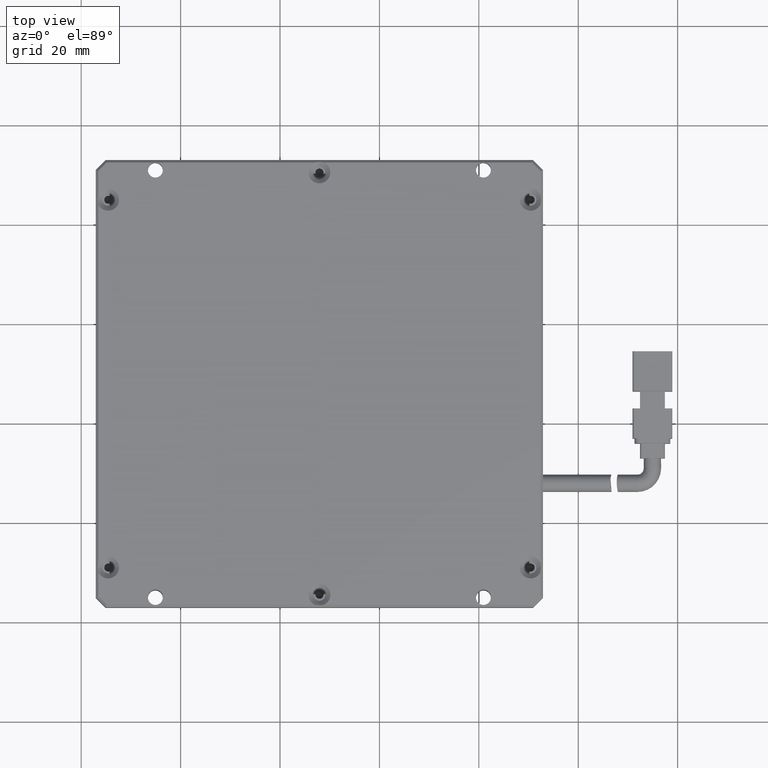
[diagram: clean part render]
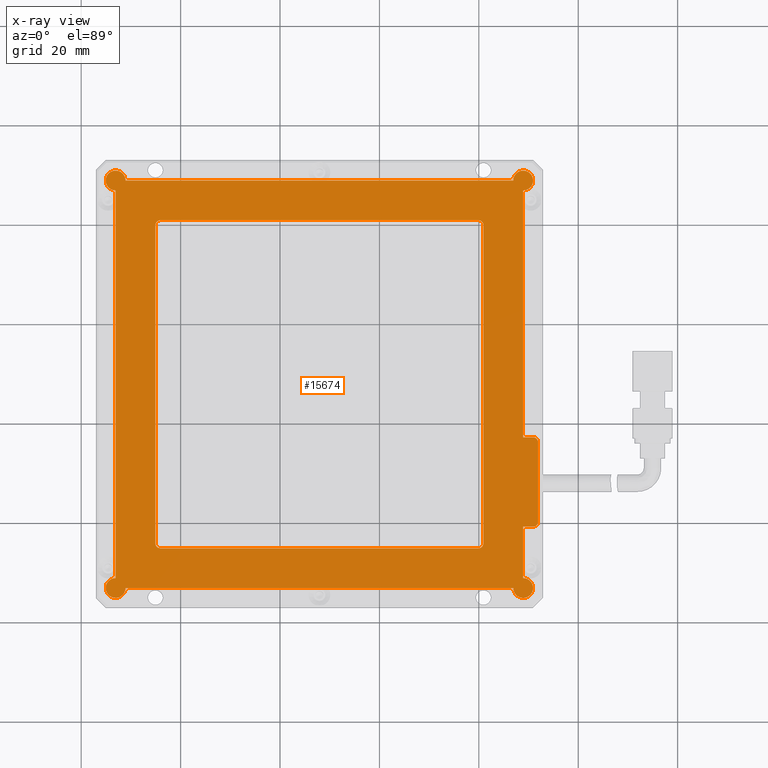
[diagram: x-ray — body ghosted, one internal face saturated and labeled with its STEP entity id]
A machine part, top view, then the same camera in x-ray: the body is ghosted and one INTERNAL B-rep face — a face not visible from any outside direction — is saturated and labeled: STEP entity #15674.
In plain terms, the highlighted planar face has unit normal (-0, 0, 1).
Its self-contained STEP definition (entity closure, byte-faithful):
#203 = EDGE_CURVE ( 'NONE', #16729, #277, #480, .T. ) ;
#277 = VERTEX_POINT ( 'NONE', #5808 ) ;
#480 = CIRCLE ( 'NONE', #10522, 2.000000000000001800 ) ;
#699 = LINE ( 'NONE', #14912, #8161 ) ;
#782 = DIRECTION ( 'NONE',  ( 1.000000000000000000, 0.0000000000000000000, 0.0000000000000000000 ) ) ;
#783 = CARTESIAN_POINT ( 'NONE',  ( 8.920740740740770400, -13.06000000000001600, -2.000000000000000000 ) ) ;
#830 = CIRCLE ( 'NONE', #3442, 2.000000000000001800 ) ;
#835 = CARTESIAN_POINT ( 'NONE',  ( 8.920740740740770400, 66.93999999999999800, -2.000000000000000000 ) ) ;
#846 = DIRECTION ( 'NONE',  ( -0.0000000000000000000, -0.0000000000000000000, 1.000000000000000000 ) ) ;
#947 = EDGE_CURVE ( 'NONE', #4215, #11869, #8292, .T. ) ;
#1188 = DIRECTION ( 'NONE',  ( 0.0000000000000000000, 1.000000000000000000, -0.0000000000000000000 ) ) ;
#1235 = CARTESIAN_POINT ( 'NONE',  ( 8.920740740740770400, -11.06000000000001500, -2.000000000000000000 ) ) ;
#1364 = CIRCLE ( 'NONE', #7780, 1.000000000000000900 ) ;
#1443 = DIRECTION ( 'NONE',  ( -0.0000000000000000000, -0.0000000000000000000, 1.000000000000000000 ) ) ;
#1472 = VERTEX_POINT ( 'NONE', #6401 ) ;
#1513 = DIRECTION ( 'NONE',  ( -0.0000000000000000000, 0.0000000000000000000, 1.000000000000000000 ) ) ;
#1642 = EDGE_CURVE ( 'NONE', #8395, #12566, #12587, .T. ) ;
#1661 = CARTESIAN_POINT ( 'NONE',  ( -73.07925925925924600, -11.06000000000001600, -2.000000000000000000 ) ) ;
#1773 = EDGE_CURVE ( 'NONE', #6897, #4829, #13437, .T. ) ;
#1838 = DIRECTION ( 'NONE',  ( -0.0000000000000000000, -0.0000000000000000000, 1.000000000000000000 ) ) ;
#1852 = CARTESIAN_POINT ( 'NONE',  ( -73.07925925925924600, 66.93999999999999800, -2.000000000000000000 ) ) ;
#1886 = CARTESIAN_POINT ( 'NONE',  ( 0.9207407407407497400, 59.94000000000000500, -2.000000000000000000 ) ) ;
#1971 = ORIENTED_EDGE ( 'NONE', *, *, #13765, .T. ) ;
#1983 = EDGE_CURVE ( 'NONE', #12288, #10540, #11546, .T. ) ;
#2100 = CARTESIAN_POINT ( 'NONE',  ( 8.920740740740756200, 68.93999999999999800, -2.000000000000000000 ) ) ;
#2331 = DIRECTION ( 'NONE',  ( -0.0000000000000000000, -0.0000000000000000000, -1.000000000000000000 ) ) ;
#2409 = CARTESIAN_POINT ( 'NONE',  ( 8.920740740740770400, -0.7385637334317435300, -2.000000000000000000 ) ) ;
#2434 = CARTESIAN_POINT ( 'NONE',  ( 11.92074074074077400, -13.06000000000001600, -2.000000000000000000 ) ) ;
#2445 = EDGE_CURVE ( 'NONE', #8672, #13931, #11530, .T. ) ;
#2753 = CIRCLE ( 'NONE', #14839, 2.000000000000001800 ) ;
#2861 = ORIENTED_EDGE ( 'NONE', *, *, #11790, .T. ) ;
#3070 = AXIS2_PLACEMENT_3D ( 'NONE', #9900, #1513, #11325 ) ;
#3110 = VERTEX_POINT ( 'NONE', #8016 ) ;
#3150 = CARTESIAN_POINT ( 'NONE',  ( 8.920740740740770400, -13.06000000000001600, -2.000000000000000000 ) ) ;
#3442 = AXIS2_PLACEMENT_3D ( 'NONE', #14205, #846, #10660 ) ;
#3451 = CARTESIAN_POINT ( 'NONE',  ( 10.92074074074078600, -0.7385637334317435300, -1.999999999999999100 ) ) ;
#3536 = CARTESIAN_POINT ( 'NONE',  ( 8.920740740740770400, -13.06000000000001600, -2.000000000000000000 ) ) ;
#4215 = VERTEX_POINT ( 'NONE', #1235 ) ;
#4376 = CARTESIAN_POINT ( 'NONE',  ( 6.920740740740768600, -13.06000000000001600, -2.000000000000000000 ) ) ;
#4418 = ORIENTED_EDGE ( 'NONE', *, *, #7686, .T. ) ;
#4558 = CARTESIAN_POINT ( 'NONE',  ( -71.07925925925924600, 68.93999999999999800, -2.000000000000000000 ) ) ;
#4829 = VERTEX_POINT ( 'NONE', #1852 ) ;
#4961 = ORIENTED_EDGE ( 'NONE', *, *, #8245, .F. ) ;
#4993 = DIRECTION ( 'NONE',  ( 1.000000000000000000, 0.0000000000000000000, 0.0000000000000000000 ) ) ;
#5012 = LINE ( 'NONE', #17932, #12373 ) ;
#5073 = CARTESIAN_POINT ( 'NONE',  ( -0.07925925925922339100, -4.059999999999994300, -2.000000000000000000 ) ) ;
#5293 = ORIENTED_EDGE ( 'NONE', *, *, #13550, .T. ) ;
#5327 = AXIS2_PLACEMENT_3D ( 'NONE', #6534, #16156, #7919 ) ;
#5567 = CIRCLE ( 'NONE', #13862, 1.000000000000000900 ) ;
#5791 = EDGE_CURVE ( 'NONE', #16680, #10540, #14229, .T. ) ;
#5793 = ORIENTED_EDGE ( 'NONE', *, *, #7312, .T. ) ;
#5808 = CARTESIAN_POINT ( 'NONE',  ( 6.920740740740755300, 68.93999999999999800, -2.000000000000000000 ) ) ;
#5879 = DIRECTION ( 'NONE',  ( 0.0000000000000000000, 1.000000000000000000, -0.0000000000000000000 ) ) ;
#5941 = DIRECTION ( 'NONE',  ( -0.0000000000000000000, 0.0000000000000000000, -1.000000000000000000 ) ) ;
#6017 = VERTEX_POINT ( 'NONE', #16732 ) ;
#6220 = LINE ( 'NONE', #7934, #13135 ) ;
#6401 = CARTESIAN_POINT ( 'NONE',  ( 10.92074074074077200, -13.06000000000001600, -2.000000000000000000 ) ) ;
#6416 = ORIENTED_EDGE ( 'NONE', *, *, #11770, .T. ) ;
#6490 = DIRECTION ( 'NONE',  ( 1.000000000000000000, 0.0000000000000000000, 0.0000000000000000000 ) ) ;
#6521 = CARTESIAN_POINT ( 'NONE',  ( -71.07925925925924600, -13.06000000000001600, -2.000000000000000000 ) ) ;
#6533 = VECTOR ( 'NONE', #12614, 1000.000000000000000 ) ;
#6534 = CARTESIAN_POINT ( 'NONE',  ( 10.92074074074078600, 16.26143626656825700, -1.999999999999999100 ) ) ;
#6609 = EDGE_LOOP ( 'NONE', ( #13411, #13968, #14447, #14907, #15366, #1971, #2861, #4418, #5293, #6416, #7056, #12913, #13989, #15039, #16565, #17484 ) ) ;
#6669 = DIRECTION ( 'NONE',  ( -1.000000000000000000, -0.0000000000000000000, -0.0000000000000000000 ) ) ;
#6886 = ORIENTED_EDGE ( 'NONE', *, *, #1642, .F. ) ;
#6897 = VERTEX_POINT ( 'NONE', #4558 ) ;
#7056 = ORIENTED_EDGE ( 'NONE', *, *, #203, .T. ) ;
#7248 = CARTESIAN_POINT ( 'NONE',  ( 10.92074074074078600, 0.2614362665682608000, -1.999999999999999100 ) ) ;
#7312 = EDGE_CURVE ( 'NONE', #11448, #12566, #1364, .T. ) ;
#7344 = CIRCLE ( 'NONE', #16387, 1.000000000000000900 ) ;
#7494 = ORIENTED_EDGE ( 'NONE', *, *, #13210, .T. ) ;
#7661 = EDGE_CURVE ( 'NONE', #16680, #14309, #6220, .T. ) ;
#7686 = EDGE_CURVE ( 'NONE', #6017, #16736, #699, .T. ) ;
#7690 = DIRECTION ( 'NONE',  ( -0.0000000000000000000, -0.0000000000000000000, 1.000000000000000000 ) ) ;
#7702 = CARTESIAN_POINT ( 'NONE',  ( -65.07925925925923100, -4.059999999999994300, -2.000000000000000000 ) ) ;
#7780 = AXIS2_PLACEMENT_3D ( 'NONE', #8444, #18106, #9800 ) ;
#7919 = DIRECTION ( 'NONE',  ( -1.000000000000000000, 0.0000000000000000000, 0.0000000000000000000 ) ) ;
#7934 = CARTESIAN_POINT ( 'NONE',  ( 0.9207407407407497400, 60.94000000000000500, -2.000000000000000000 ) ) ;
#7996 = ORIENTED_EDGE ( 'NONE', *, *, #7661, .F. ) ;
#8016 = CARTESIAN_POINT ( 'NONE',  ( 11.92074074074077400, 0.2614362665682608000, -1.999999999999999100 ) ) ;
#8161 = VECTOR ( 'NONE', #6669, 1000.000000000000000 ) ;
#8240 = AXIS2_PLACEMENT_3D ( 'NONE', #10298, #11638, #11762 ) ;
#8245 = EDGE_CURVE ( 'NONE', #11448, #12853, #13639, .T. ) ;
#8292 = LINE ( 'NONE', #783, #15627 ) ;
#8333 = AXIS2_PLACEMENT_3D ( 'NONE', #7248, #16924, #8663 ) ;
#8395 = VERTEX_POINT ( 'NONE', #8595 ) ;
#8444 = CARTESIAN_POINT ( 'NONE',  ( -64.07925925925923100, 59.94000000000000500, -2.000000000000000000 ) ) ;
#8451 = AXIS2_PLACEMENT_3D ( 'NONE', #5073, #14743, #6490 ) ;
#8482 = PLANE ( 'NONE',  #3070 ) ;
#8505 = AXIS2_PLACEMENT_3D ( 'NONE', #15928, #7690, #17371 ) ;
#8595 = CARTESIAN_POINT ( 'NONE',  ( -0.07925925925925114700, 60.94000000000000500, -2.000000000000000000 ) ) ;
#8663 = DIRECTION ( 'NONE',  ( -1.000000000000000000, 0.0000000000000000000, 0.0000000000000000000 ) ) ;
#8672 = VERTEX_POINT ( 'NONE', #6521 ) ;
#8811 = ORIENTED_EDGE ( 'NONE', *, *, #5791, .T. ) ;
#8857 = LINE ( 'NONE', #3150, #12498 ) ;
#9036 = EDGE_LOOP ( 'NONE', ( #4961, #5793, #6886, #7494, #7996, #8811, #11918, #12320 ) ) ;
#9322 = EDGE_CURVE ( 'NONE', #15520, #3110, #15330, .T. ) ;
#9574 = DIRECTION ( 'NONE',  ( -0.0000000000000000000, -1.000000000000000000, 0.0000000000000000000 ) ) ;
#9604 = DIRECTION ( 'NONE',  ( -1.000000000000000000, -0.0000000000000000000, -0.0000000000000000000 ) ) ;
#9668 = CARTESIAN_POINT ( 'NONE',  ( -73.07925925925924600, 68.93999999999999800, -2.000000000000000000 ) ) ;
#9674 = LINE ( 'NONE', #15189, #12927 ) ;
#9738 = EDGE_CURVE ( 'NONE', #11869, #15520, #9674, .T. ) ;
#9793 = CARTESIAN_POINT ( 'NONE',  ( 8.920740740740770400, 17.26143626656825700, -2.000000000000000000 ) ) ;
#9800 = DIRECTION ( 'NONE',  ( 1.000000000000000000, 0.0000000000000000000, 0.0000000000000000000 ) ) ;
#9900 = CARTESIAN_POINT ( 'NONE',  ( -73.07925925925924600, -13.06000000000001600, -2.000000000000000000 ) ) ;
#10130 = VECTOR ( 'NONE', #12231, 1000.000000000000000 ) ;
#10152 = LINE ( 'NONE', #9668, #13786 ) ;
#10252 = CARTESIAN_POINT ( 'NONE',  ( 8.920740740740770400, -13.06000000000001600, -2.000000000000000000 ) ) ;
#10298 = CARTESIAN_POINT ( 'NONE',  ( -73.07925925925924600, 68.94000000000001200, -2.000000000000000000 ) ) ;
#10401 = VERTEX_POINT ( 'NONE', #1661 ) ;
#10522 = AXIS2_PLACEMENT_3D ( 'NONE', #2100, #1443, #782 ) ;
#10540 = VERTEX_POINT ( 'NONE', #14276 ) ;
#10660 = DIRECTION ( 'NONE',  ( 1.000000000000000000, 0.0000000000000000000, 0.0000000000000000000 ) ) ;
#10750 = CARTESIAN_POINT ( 'NONE',  ( -0.07925925925925114700, 59.94000000000000500, -2.000000000000000000 ) ) ;
#10893 = CARTESIAN_POINT ( 'NONE',  ( -65.07925925925923100, 60.94000000000000500, -2.000000000000000000 ) ) ;
#11307 = CARTESIAN_POINT ( 'NONE',  ( -73.07925925925924600, -13.06000000000001600, -2.000000000000000000 ) ) ;
#11325 = DIRECTION ( 'NONE',  ( 1.000000000000000000, 0.0000000000000000000, 0.0000000000000000000 ) ) ;
#11362 = DIRECTION ( 'NONE',  ( 1.000000000000000000, 0.0000000000000000000, 0.0000000000000000000 ) ) ;
#11448 = VERTEX_POINT ( 'NONE', #12150 ) ;
#11530 = LINE ( 'NONE', #11307, #15141 ) ;
#11537 = EDGE_CURVE ( 'NONE', #4829, #10401, #5012, .T. ) ;
#11546 = LINE ( 'NONE', #12167, #6533 ) ;
#11638 = DIRECTION ( 'NONE',  ( -0.0000000000000000000, -0.0000000000000000000, 1.000000000000000000 ) ) ;
#11648 = DIRECTION ( 'NONE',  ( 1.000000000000000000, 0.0000000000000000000, 0.0000000000000000000 ) ) ;
#11694 = DIRECTION ( 'NONE',  ( -1.000000000000000000, -0.0000000000000000000, -0.0000000000000000000 ) ) ;
#11762 = DIRECTION ( 'NONE',  ( 1.000000000000000000, 0.0000000000000000000, 0.0000000000000000000 ) ) ;
#11770 = EDGE_CURVE ( 'NONE', #15896, #16729, #830, .T. ) ;
#11790 = EDGE_CURVE ( 'NONE', #12194, #6017, #11988, .T. ) ;
#11867 = CARTESIAN_POINT ( 'NONE',  ( -65.07925925925923100, 60.94000000000000500, -2.000000000000000000 ) ) ;
#11869 = VERTEX_POINT ( 'NONE', #2409 ) ;
#11918 = ORIENTED_EDGE ( 'NONE', *, *, #1983, .F. ) ;
#11988 = CIRCLE ( 'NONE', #5327, 1.000000000000000900 ) ;
#12136 = DIRECTION ( 'NONE',  ( 1.000000000000000000, 0.0000000000000000000, 0.0000000000000000000 ) ) ;
#12150 = CARTESIAN_POINT ( 'NONE',  ( -65.07925925925923100, 59.94000000000000500, -2.000000000000000000 ) ) ;
#12167 = CARTESIAN_POINT ( 'NONE',  ( -65.07925925925923100, -5.059999999999995200, -2.000000000000000000 ) ) ;
#12194 = VERTEX_POINT ( 'NONE', #12974 ) ;
#12231 = DIRECTION ( 'NONE',  ( 0.0000000000000000000, 1.000000000000000000, -0.0000000000000000000 ) ) ;
#12288 = VERTEX_POINT ( 'NONE', #17344 ) ;
#12320 = ORIENTED_EDGE ( 'NONE', *, *, #13524, .T. ) ;
#12324 = DIRECTION ( 'NONE',  ( 1.051347561198064800E-016, -1.000000000000000000, -0.0000000000000000000 ) ) ;
#12373 = VECTOR ( 'NONE', #9574, 1000.000000000000000 ) ;
#12498 = VECTOR ( 'NONE', #5879, 1000.000000000000000 ) ;
#12566 = VERTEX_POINT ( 'NONE', #16630 ) ;
#12587 = LINE ( 'NONE', #11867, #16234 ) ;
#12614 = DIRECTION ( 'NONE',  ( 1.000000000000000000, 0.0000000000000000000, -0.0000000000000000000 ) ) ;
#12810 = FACE_OUTER_BOUND ( 'NONE', #6609, .T. ) ;
#12853 = VERTEX_POINT ( 'NONE', #7702 ) ;
#12913 = ORIENTED_EDGE ( 'NONE', *, *, #16692, .T. ) ;
#12927 = VECTOR ( 'NONE', #18063, 1000.000000000000000 ) ;
#12974 = CARTESIAN_POINT ( 'NONE',  ( 11.92074074074077400, 16.26143626656825700, -1.999999999999999100 ) ) ;
#13135 = VECTOR ( 'NONE', #16040, 1000.000000000000000 ) ;
#13210 = EDGE_CURVE ( 'NONE', #8395, #14309, #7344, .T. ) ;
#13246 = FACE_BOUND ( 'NONE', #9036, .T. ) ;
#13264 = DIRECTION ( 'NONE',  ( -0.0000000000000000000, -0.0000000000000000000, 1.000000000000000000 ) ) ;
#13411 = ORIENTED_EDGE ( 'NONE', *, *, #15865, .T. ) ;
#13437 = CIRCLE ( 'NONE', #8240, 2.000000000000001800 ) ;
#13524 = EDGE_CURVE ( 'NONE', #12288, #12853, #5567, .T. ) ;
#13550 = EDGE_CURVE ( 'NONE', #16736, #15896, #8857, .T. ) ;
#13639 = LINE ( 'NONE', #10893, #17352 ) ;
#13761 = LINE ( 'NONE', #2434, #10130 ) ;
#13765 = EDGE_CURVE ( 'NONE', #3110, #12194, #13761, .T. ) ;
#13786 = VECTOR ( 'NONE', #9604, 1000.000000000000000 ) ;
#13862 = AXIS2_PLACEMENT_3D ( 'NONE', #14207, #5941, #15608 ) ;
#13931 = VERTEX_POINT ( 'NONE', #4376 ) ;
#13968 = ORIENTED_EDGE ( 'NONE', *, *, #14036, .T. ) ;
#13989 = ORIENTED_EDGE ( 'NONE', *, *, #1773, .T. ) ;
#14036 = EDGE_CURVE ( 'NONE', #1472, #4215, #18107, .T. ) ;
#14123 = CIRCLE ( 'NONE', #8505, 2.000000000000001800 ) ;
#14205 = CARTESIAN_POINT ( 'NONE',  ( 8.920740740740756200, 68.93999999999999800, -2.000000000000000000 ) ) ;
#14207 = CARTESIAN_POINT ( 'NONE',  ( -64.07925925925923100, -4.059999999999994300, -2.000000000000000000 ) ) ;
#14229 = CIRCLE ( 'NONE', #8451, 1.000000000000000900 ) ;
#14276 = CARTESIAN_POINT ( 'NONE',  ( -0.07925925925922339100, -5.059999999999995200, -2.000000000000000000 ) ) ;
#14309 = VERTEX_POINT ( 'NONE', #1886 ) ;
#14447 = ORIENTED_EDGE ( 'NONE', *, *, #947, .T. ) ;
#14743 = DIRECTION ( 'NONE',  ( -0.0000000000000000000, -0.0000000000000000000, -1.000000000000000000 ) ) ;
#14839 = AXIS2_PLACEMENT_3D ( 'NONE', #3536, #13264, #4993 ) ;
#14907 = ORIENTED_EDGE ( 'NONE', *, *, #9738, .T. ) ;
#14912 = CARTESIAN_POINT ( 'NONE',  ( -73.07925925925924600, 17.26143626656825700, -2.000000000000000000 ) ) ;
#15039 = ORIENTED_EDGE ( 'NONE', *, *, #11537, .T. ) ;
#15141 = VECTOR ( 'NONE', #11362, 1000.000000000000000 ) ;
#15189 = CARTESIAN_POINT ( 'NONE',  ( -73.07925925925924600, -0.7385637334317435300, -2.000000000000000000 ) ) ;
#15277 = CARTESIAN_POINT ( 'NONE',  ( 10.92074074074075800, 68.93999999999999800, -2.000000000000000000 ) ) ;
#15330 = CIRCLE ( 'NONE', #8333, 1.000000000000000900 ) ;
#15366 = ORIENTED_EDGE ( 'NONE', *, *, #9322, .T. ) ;
#15520 = VERTEX_POINT ( 'NONE', #3451 ) ;
#15530 = EDGE_CURVE ( 'NONE', #10401, #8672, #14123, .T. ) ;
#15608 = DIRECTION ( 'NONE',  ( 1.000000000000000000, 0.0000000000000000000, 0.0000000000000000000 ) ) ;
#15627 = VECTOR ( 'NONE', #1188, 1000.000000000000000 ) ;
#15674 = ADVANCED_FACE ( 'NONE', ( #13246, #12810 ), #8482, .T. ) ;
#15865 = EDGE_CURVE ( 'NONE', #13931, #1472, #2753, .T. ) ;
#15896 = VERTEX_POINT ( 'NONE', #835 ) ;
#15928 = CARTESIAN_POINT ( 'NONE',  ( -73.07925925925924600, -13.06000000000001600, -2.000000000000000000 ) ) ;
#16040 = DIRECTION ( 'NONE',  ( -4.205390244792259300E-016, 1.000000000000000000, -0.0000000000000000000 ) ) ;
#16156 = DIRECTION ( 'NONE',  ( -0.0000000000000000000, -0.0000000000000000000, 1.000000000000000000 ) ) ;
#16234 = VECTOR ( 'NONE', #11694, 1000.000000000000000 ) ;
#16387 = AXIS2_PLACEMENT_3D ( 'NONE', #10750, #2331, #12136 ) ;
#16565 = ORIENTED_EDGE ( 'NONE', *, *, #15530, .T. ) ;
#16630 = CARTESIAN_POINT ( 'NONE',  ( -64.07925925925923100, 60.94000000000000500, -2.000000000000000000 ) ) ;
#16680 = VERTEX_POINT ( 'NONE', #17901 ) ;
#16692 = EDGE_CURVE ( 'NONE', #277, #6897, #10152, .T. ) ;
#16729 = VERTEX_POINT ( 'NONE', #15277 ) ;
#16732 = CARTESIAN_POINT ( 'NONE',  ( 10.92074074074078600, 17.26143626656825700, -1.999999999999999100 ) ) ;
#16736 = VERTEX_POINT ( 'NONE', #9793 ) ;
#16924 = DIRECTION ( 'NONE',  ( -0.0000000000000000000, -0.0000000000000000000, 1.000000000000000000 ) ) ;
#17344 = CARTESIAN_POINT ( 'NONE',  ( -64.07925925925923100, -5.059999999999995200, -2.000000000000000000 ) ) ;
#17352 = VECTOR ( 'NONE', #12324, 1000.000000000000000 ) ;
#17371 = DIRECTION ( 'NONE',  ( 1.000000000000000000, 0.0000000000000000000, 0.0000000000000000000 ) ) ;
#17484 = ORIENTED_EDGE ( 'NONE', *, *, #2445, .T. ) ;
#17491 = AXIS2_PLACEMENT_3D ( 'NONE', #10252, #1838, #11648 ) ;
#17901 = CARTESIAN_POINT ( 'NONE',  ( 0.9207407407407775000, -4.059999999999994300, -2.000000000000000000 ) ) ;
#17932 = CARTESIAN_POINT ( 'NONE',  ( -73.07925925925924600, -13.06000000000001600, -2.000000000000000000 ) ) ;
#18063 = DIRECTION ( 'NONE',  ( 1.000000000000000000, 0.0000000000000000000, 0.0000000000000000000 ) ) ;
#18106 = DIRECTION ( 'NONE',  ( -0.0000000000000000000, -0.0000000000000000000, -1.000000000000000000 ) ) ;
#18107 = CIRCLE ( 'NONE', #17491, 2.000000000000001800 ) ;